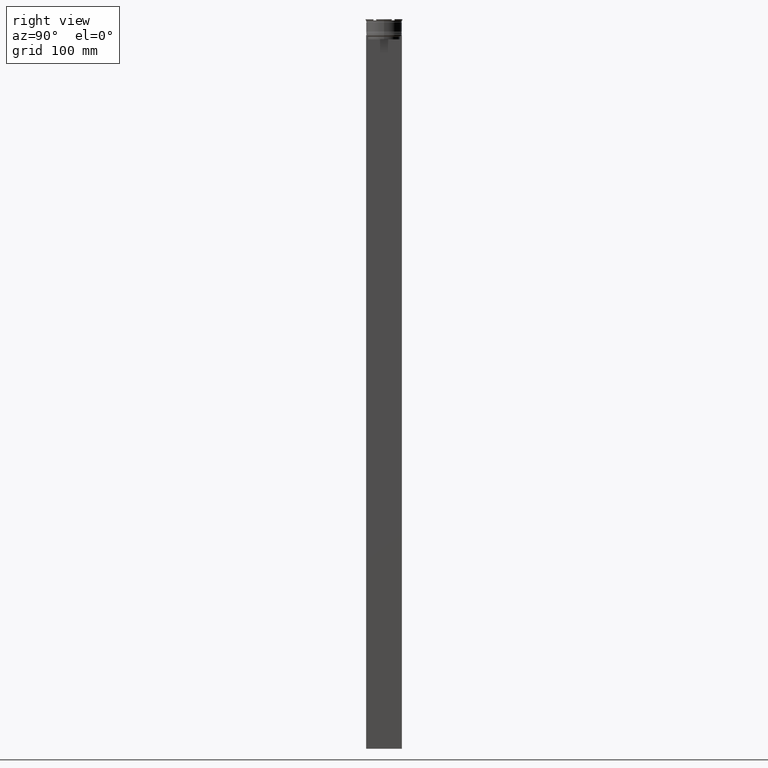
[diagram: clean part render]
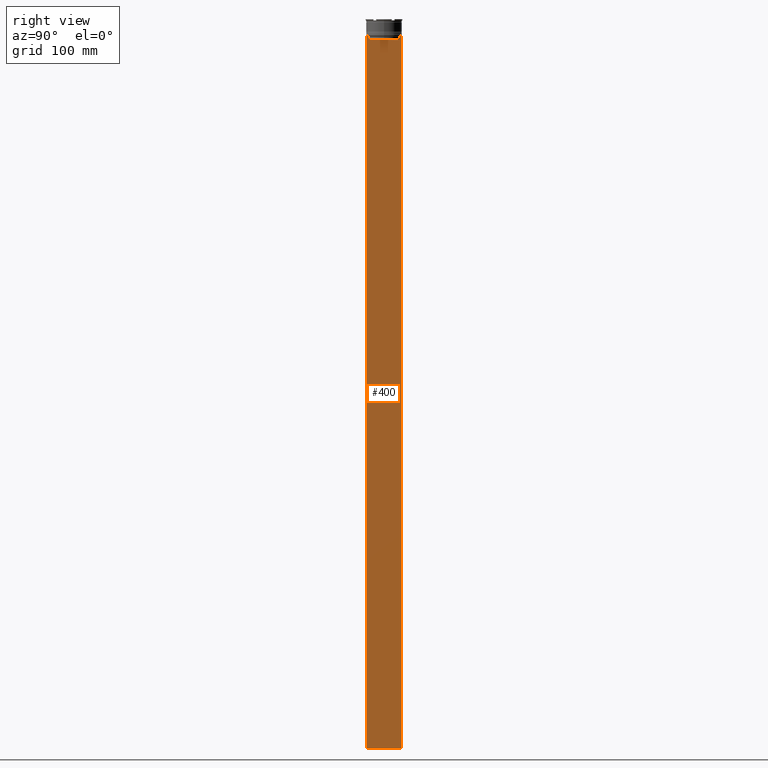
[diagram: same view with one face highlighted and labeled with its STEP entity id]
A machine part, right view. The second image highlights one B-rep face of the part: STEP entity #400.
In plain terms, the highlighted planar face has unit normal (-1, 0, 0).
Its self-contained STEP definition (entity closure, byte-faithful):
#29 = VERTEX_POINT ( 'NONE', #1667 ) ;
#45 = ORIENTED_EDGE ( 'NONE', *, *, #1723, .T. ) ;
#114 = CARTESIAN_POINT ( 'NONE',  ( 0.5000000000000001110, -15.00000000000000355, 16.01666203960726165 ) ) ;
#224 = EDGE_CURVE ( 'NONE', #1034, #616, #1343, .T. ) ;
#279 = VECTOR ( 'NONE', #452, 1000.000000000000000 ) ;
#295 = B_SPLINE_CURVE_WITH_KNOTS ( 'NONE', 3,
 ( #2767, #1033, #2805, #2128 ),
 .UNSPECIFIED., .F., .F.,
 ( 4, 4 ),
 ( 0.06160226316123722928, 0.06231007364084064498 ),
 .UNSPECIFIED. ) ;
#303 = DIRECTION ( 'NONE',  ( 0.000000000000000000, -1.000000000000000000, 0.000000000000000000 ) ) ;
#373 = DIRECTION ( 'NONE',  ( 0.000000000000000000, -1.000000000000000000, 0.000000000000000000 ) ) ;
#400 = ADVANCED_FACE ( 'NONE', ( #1430 ), #1882, .F. ) ;
#419 = VERTEX_POINT ( 'NONE', #1212 ) ;
#451 = ORIENTED_EDGE ( 'NONE', *, *, #2297, .T. ) ;
#452 = DIRECTION ( 'NONE',  ( 0.000000000000000000, -1.000000000000000000, 0.000000000000000000 ) ) ;
#503 = VERTEX_POINT ( 'NONE', #1540 ) ;
#531 = EDGE_CURVE ( 'NONE', #503, #419, #1483, .T. ) ;
#536 = VERTEX_POINT ( 'NONE', #617 ) ;
#546 = LINE ( 'NONE', #2511, #2672 ) ;
#563 = ORIENTED_EDGE ( 'NONE', *, *, #1903, .T. ) ;
#567 = VERTEX_POINT ( 'NONE', #1959 ) ;
#616 = VERTEX_POINT ( 'NONE', #2875 ) ;
#617 = CARTESIAN_POINT ( 'NONE',  ( 0.5000000000000001110, -13.39066839257847086, -17.00000000000000000 ) ) ;
#620 = ORIENTED_EDGE ( 'NONE', *, *, #224, .T. ) ;
#631 = CARTESIAN_POINT ( 'NONE',  ( 0.5000000000000001110, -15.00000000000000355, -14.00000000000000178 ) ) ;
#667 = VECTOR ( 'NONE', #785, 1000.000000000000000 ) ;
#700 = CARTESIAN_POINT ( 'NONE',  ( 0.5000000000000001110, -15.00000000000000355, -14.00000000000000178 ) ) ;
#751 = CARTESIAN_POINT ( 'NONE',  ( 0.5000000000000001110, 13.55744911232272543, -14.33333542444994002 ) ) ;
#752 = VERTEX_POINT ( 'NONE', #1428 ) ;
#755 = EDGE_CURVE ( 'NONE', #2634, #1237, #1198, .T. ) ;
#760 = EDGE_CURVE ( 'NONE', #1634, #2634, #1867, .T. ) ;
#785 = DIRECTION ( 'NONE',  ( 0.000000000000000000, -1.000000000000000000, 0.000000000000000000 ) ) ;
#806 = VECTOR ( 'NONE', #2549, 1000.000000000000000 ) ;
#902 = ORIENTED_EDGE ( 'NONE', *, *, #1454, .T. ) ;
#911 = LINE ( 'NONE', #2451, #1978 ) ;
#989 = CARTESIAN_POINT ( 'NONE',  ( 0.5000000000000001110, 13.39066839257847263, -14.49999999999999822 ) ) ;
#1007 = DIRECTION ( 'NONE',  ( 0.000000000000000000, 0.000000000000000000, -1.000000000000000000 ) ) ;
#1010 = DIRECTION ( 'NONE',  ( -1.000000000000000000, 0.000000000000000000, 0.000000000000000000 ) ) ;
#1033 = CARTESIAN_POINT ( 'NONE',  ( 0.5000000000000001110, -13.55744911241550099, -14.33333542435722663 ) ) ;
#1034 = VERTEX_POINT ( 'NONE', #1573 ) ;
#1042 = VECTOR ( 'NONE', #1157, 1000.000000000000000 ) ;
#1132 = VECTOR ( 'NONE', #1007, 1000.000000000000000 ) ;
#1157 = DIRECTION ( 'NONE',  ( 0.000000000000000000, 0.000000000000000000, -1.000000000000000000 ) ) ;
#1198 = LINE ( 'NONE', #1633, #1132 ) ;
#1212 = CARTESIAN_POINT ( 'NONE',  ( 0.5000000000000001110, 14.89160837518903513, -14.00000000000000178 ) ) ;
#1222 = CARTESIAN_POINT ( 'NONE',  ( 0.5000000000000001110, 13.89100428334828230, -14.00000000000000178 ) ) ;
#1227 = LINE ( 'NONE', #2114, #667 ) ;
#1230 = ORIENTED_EDGE ( 'NONE', *, *, #1969, .F. ) ;
#1237 = VERTEX_POINT ( 'NONE', #2324 ) ;
#1294 = ORIENTED_EDGE ( 'NONE', *, *, #755, .T. ) ;
#1318 = VECTOR ( 'NONE', #2684, 1000.000000000000000 ) ;
#1343 = LINE ( 'NONE', #700, #279 ) ;
#1378 = ORIENTED_EDGE ( 'NONE', *, *, #760, .T. ) ;
#1428 = CARTESIAN_POINT ( 'NONE',  ( 0.5000000000000001110, 14.99999999999999645, -614.0000000000000000 ) ) ;
#1430 = FACE_OUTER_BOUND ( 'NONE', #2412, .T. ) ;
#1454 = EDGE_CURVE ( 'NONE', #567, #752, #2001, .T. ) ;
#1483 = LINE ( 'NONE', #631, #2757 ) ;
#1501 = AXIS2_PLACEMENT_3D ( 'NONE', #114, #1010, #1910 ) ;
#1540 = CARTESIAN_POINT ( 'NONE',  ( 0.5000000000000001110, 14.99999999999999645, -14.00000000000000178 ) ) ;
#1573 = CARTESIAN_POINT ( 'NONE',  ( 0.5000000000000001110, -14.89160837518903513, -14.00000000000000178 ) ) ;
#1592 = CARTESIAN_POINT ( 'NONE',  ( 0.5000000000000001110, -13.39066839257847263, 0.000000000000000000 ) ) ;
#1608 = EDGE_CURVE ( 'NONE', #2537, #29, #295, .T. ) ;
#1633 = CARTESIAN_POINT ( 'NONE',  ( 0.5000000000000001110, 13.39066839257847263, 0.000000000000000000 ) ) ;
#1634 = VERTEX_POINT ( 'NONE', #1705 ) ;
#1667 = CARTESIAN_POINT ( 'NONE',  ( 0.5000000000000001110, -13.89100428334828230, -14.00000000000000178 ) ) ;
#1690 = EDGE_CURVE ( 'NONE', #419, #1634, #2139, .T. ) ;
#1705 = CARTESIAN_POINT ( 'NONE',  ( 0.5000000000000001110, 13.89100428334828230, -14.00000000000000178 ) ) ;
#1723 = EDGE_CURVE ( 'NONE', #29, #1034, #1227, .T. ) ;
#1825 = LINE ( 'NONE', #1592, #2850 ) ;
#1852 = CARTESIAN_POINT ( 'NONE',  ( 0.5000000000000001110, 13.72422766736833744, -14.16666868251365052 ) ) ;
#1867 = B_SPLINE_CURVE_WITH_KNOTS ( 'NONE', 3,
 ( #1222, #1852, #751, #989 ),
 .UNSPECIFIED., .F., .F.,
 ( 4, 4 ),
 ( 0.02359665025569774102, 0.02430399458637444096 ),
 .UNSPECIFIED. ) ;
#1882 = PLANE ( 'NONE',  #1501 ) ;
#1903 = EDGE_CURVE ( 'NONE', #536, #2537, #1825, .T. ) ;
#1910 = DIRECTION ( 'NONE',  ( 0.000000000000000000, 0.000000000000000000, 1.000000000000000000 ) ) ;
#1959 = CARTESIAN_POINT ( 'NONE',  ( 0.5000000000000001110, -15.00000000000000355, -614.0000000000000000 ) ) ;
#1969 = EDGE_CURVE ( 'NONE', #503, #752, #2442, .T. ) ;
#1973 = CARTESIAN_POINT ( 'NONE',  ( 0.5000000000000001110, -13.39066839257847263, -14.49999999999999822 ) ) ;
#1978 = VECTOR ( 'NONE', #2869, 1000.000000000000000 ) ;
#1985 = ORIENTED_EDGE ( 'NONE', *, *, #531, .T. ) ;
#2001 = LINE ( 'NONE', #2016, #1318 ) ;
#2016 = CARTESIAN_POINT ( 'NONE',  ( 0.5000000000000001110, -15.00000000000000355, -614.0000000000000000 ) ) ;
#2025 = ORIENTED_EDGE ( 'NONE', *, *, #2559, .T. ) ;
#2027 = DIRECTION ( 'NONE',  ( -0.000000000000000000, -0.000000000000000000, 1.000000000000000000 ) ) ;
#2038 = CARTESIAN_POINT ( 'NONE',  ( 0.5000000000000001110, 13.39066839257847263, -14.49999999999999822 ) ) ;
#2114 = CARTESIAN_POINT ( 'NONE',  ( 0.5000000000000001110, -15.00000000000000355, -14.00000000000000178 ) ) ;
#2128 = CARTESIAN_POINT ( 'NONE',  ( 0.5000000000000001110, -13.89100428334828230, -14.00000000000000178 ) ) ;
#2139 = LINE ( 'NONE', #2358, #806 ) ;
#2178 = ORIENTED_EDGE ( 'NONE', *, *, #1608, .T. ) ;
#2297 = EDGE_CURVE ( 'NONE', #1237, #536, #546, .T. ) ;
#2324 = CARTESIAN_POINT ( 'NONE',  ( 0.5000000000000001110, 13.39066839257847086, -17.00000000000000000 ) ) ;
#2358 = CARTESIAN_POINT ( 'NONE',  ( 0.5000000000000001110, -15.00000000000000355, -14.00000000000000178 ) ) ;
#2412 = EDGE_LOOP ( 'NONE', ( #2881, #1378, #1294, #451, #563, #2178, #45, #620, #2025, #902, #1230, #1985 ) ) ;
#2442 = LINE ( 'NONE', #2488, #1042 ) ;
#2451 = CARTESIAN_POINT ( 'NONE',  ( 0.5000000000000001110, -15.00000000000000355, 16.01666203960726165 ) ) ;
#2488 = CARTESIAN_POINT ( 'NONE',  ( 0.5000000000000001110, 14.99999999999999645, 16.01666203960726165 ) ) ;
#2511 = CARTESIAN_POINT ( 'NONE',  ( 0.5000000000000001110, 13.40000000000000391, -17.00000000000000000 ) ) ;
#2537 = VERTEX_POINT ( 'NONE', #1973 ) ;
#2549 = DIRECTION ( 'NONE',  ( 0.000000000000000000, -1.000000000000000000, 0.000000000000000000 ) ) ;
#2559 = EDGE_CURVE ( 'NONE', #616, #567, #911, .T. ) ;
#2634 = VERTEX_POINT ( 'NONE', #2038 ) ;
#2672 = VECTOR ( 'NONE', #303, 1000.000000000000000 ) ;
#2684 = DIRECTION ( 'NONE',  ( 0.000000000000000000, 1.000000000000000000, 0.000000000000000000 ) ) ;
#2757 = VECTOR ( 'NONE', #373, 1000.000000000000000 ) ;
#2767 = CARTESIAN_POINT ( 'NONE',  ( 0.5000000000000001110, -13.39066839257847263, -14.49999999999999822 ) ) ;
#2805 = CARTESIAN_POINT ( 'NONE',  ( 0.5000000000000001110, -13.72422766745777167, -14.16666868242427135 ) ) ;
#2850 = VECTOR ( 'NONE', #2027, 1000.000000000000000 ) ;
#2869 = DIRECTION ( 'NONE',  ( 0.000000000000000000, 0.000000000000000000, -1.000000000000000000 ) ) ;
#2875 = CARTESIAN_POINT ( 'NONE',  ( 0.5000000000000001110, -15.00000000000000355, -14.00000000000000178 ) ) ;
#2881 = ORIENTED_EDGE ( 'NONE', *, *, #1690, .T. ) ;